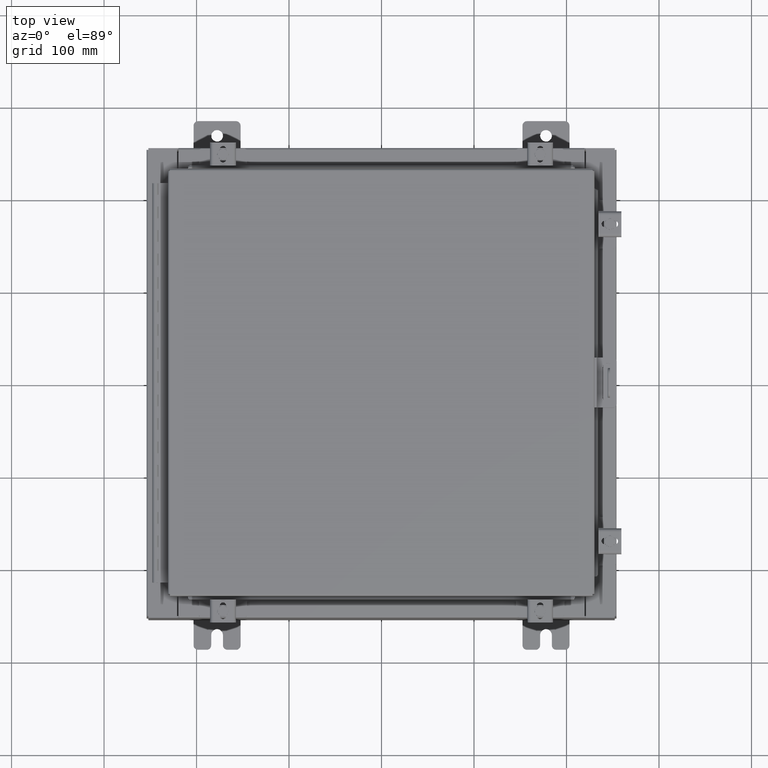
[diagram: clean part render]
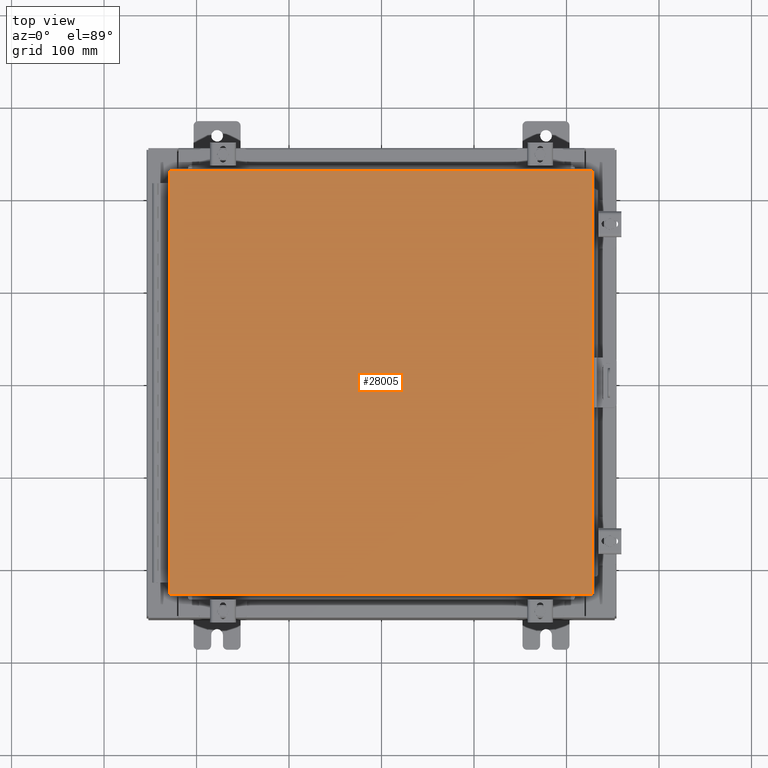
[diagram: same view with one face highlighted and labeled with its STEP entity id]
A machine part, top view. The second image highlights one B-rep face of the part: STEP entity #28005.
In plain terms, the highlighted planar face has unit normal (0, 0, -1).
Its self-contained STEP definition (entity closure, byte-faithful):
#107 = ORIENTED_EDGE ( 'NONE', *, *, #6268, .T. ) ;
#658 = CARTESIAN_POINT ( 'NONE',  ( 0.0000000000000000000, 0.0000000000000000000, 0.0000000000000000000 ) ) ;
#659 = DIRECTION ( 'NONE',  ( -1.000000000000000000, -0.0000000000000000000, -0.0000000000000000000 ) ) ;
#693 = VERTEX_POINT ( 'NONE', #23743 ) ;
#913 = ORIENTED_EDGE ( 'NONE', *, *, #4046, .T. ) ;
#2760 = VERTEX_POINT ( 'NONE', #8586 ) ;
#2926 = DIRECTION ( 'NONE',  ( -1.000000000000000000, 0.0000000000000000000, -0.0000000000000000000 ) ) ;
#3208 = LINE ( 'NONE', #12519, #9256 ) ;
#4046 = EDGE_CURVE ( 'NONE', #12173, #693, #12254, .T. ) ;
#5917 = EDGE_CURVE ( 'NONE', #16261, #12173, #21792, .T. ) ;
#6254 = DIRECTION ( 'NONE',  ( 1.000000000000000000, -0.0000000000000000000, -0.0000000000000000000 ) ) ;
#6268 = EDGE_CURVE ( 'NONE', #2760, #16261, #7138, .T. ) ;
#6415 = CARTESIAN_POINT ( 'NONE',  ( -8.990299999999999500, -9.006299999999999500, -2.048885995248197400E-016 ) ) ;
#6737 = EDGE_CURVE ( 'NONE', #693, #2760, #3208, .T. ) ;
#7138 = LINE ( 'NONE', #6415, #25348 ) ;
#7381 = PLANE ( 'NONE',  #20969 ) ;
#8586 = CARTESIAN_POINT ( 'NONE',  ( -8.990299999999999500, -9.006299999999999500, -2.048885995248197400E-016 ) ) ;
#9256 = VECTOR ( 'NONE', #27199, 39.37007874015748100 ) ;
#9654 = VECTOR ( 'NONE', #14546, 39.37007874015748100 ) ;
#11395 = CARTESIAN_POINT ( 'NONE',  ( 8.990299999999999500, -9.006299999999999500, -7.512581982576723400E-016 ) ) ;
#12173 = VERTEX_POINT ( 'NONE', #17506 ) ;
#12254 = LINE ( 'NONE', #16150, #19030 ) ;
#12519 = CARTESIAN_POINT ( 'NONE',  ( -8.990299999999997700, 9.006299999999999500, -2.048885995248197400E-016 ) ) ;
#14546 = DIRECTION ( 'NONE',  ( 0.0000000000000000000, 1.000000000000000000, 0.0000000000000000000 ) ) ;
#16150 = CARTESIAN_POINT ( 'NONE',  ( 8.990300000000001300, 9.006299999999999500, -2.048885995248197400E-016 ) ) ;
#16261 = VERTEX_POINT ( 'NONE', #11395 ) ;
#16573 = DIRECTION ( 'NONE',  ( 0.0000000000000000000, 0.0000000000000000000, -1.000000000000000000 ) ) ;
#17506 = CARTESIAN_POINT ( 'NONE',  ( 8.990300000000001300, 9.006299999999999500, -2.048885995248197400E-016 ) ) ;
#18520 = CARTESIAN_POINT ( 'NONE',  ( 8.990299999999999500, -9.006299999999999500, -7.512581982576723400E-016 ) ) ;
#19030 = VECTOR ( 'NONE', #659, 39.37007874015748100 ) ;
#20423 = EDGE_LOOP ( 'NONE', ( #107, #24553, #913, #24665 ) ) ;
#20969 = AXIS2_PLACEMENT_3D ( 'NONE', #658, #16573, #2926 ) ;
#21792 = LINE ( 'NONE', #18520, #9654 ) ;
#23743 = CARTESIAN_POINT ( 'NONE',  ( -8.990299999999997700, 9.006299999999999500, -2.048885995248197400E-016 ) ) ;
#24553 = ORIENTED_EDGE ( 'NONE', *, *, #5917, .T. ) ;
#24665 = ORIENTED_EDGE ( 'NONE', *, *, #6737, .T. ) ;
#25348 = VECTOR ( 'NONE', #6254, 39.37007874015748100 ) ;
#27199 = DIRECTION ( 'NONE',  ( 0.0000000000000000000, -1.000000000000000000, 0.0000000000000000000 ) ) ;
#27403 = FACE_OUTER_BOUND ( 'NONE', #20423, .T. ) ;
#28005 = ADVANCED_FACE ( 'NONE', ( #27403 ), #7381, .F. ) ;